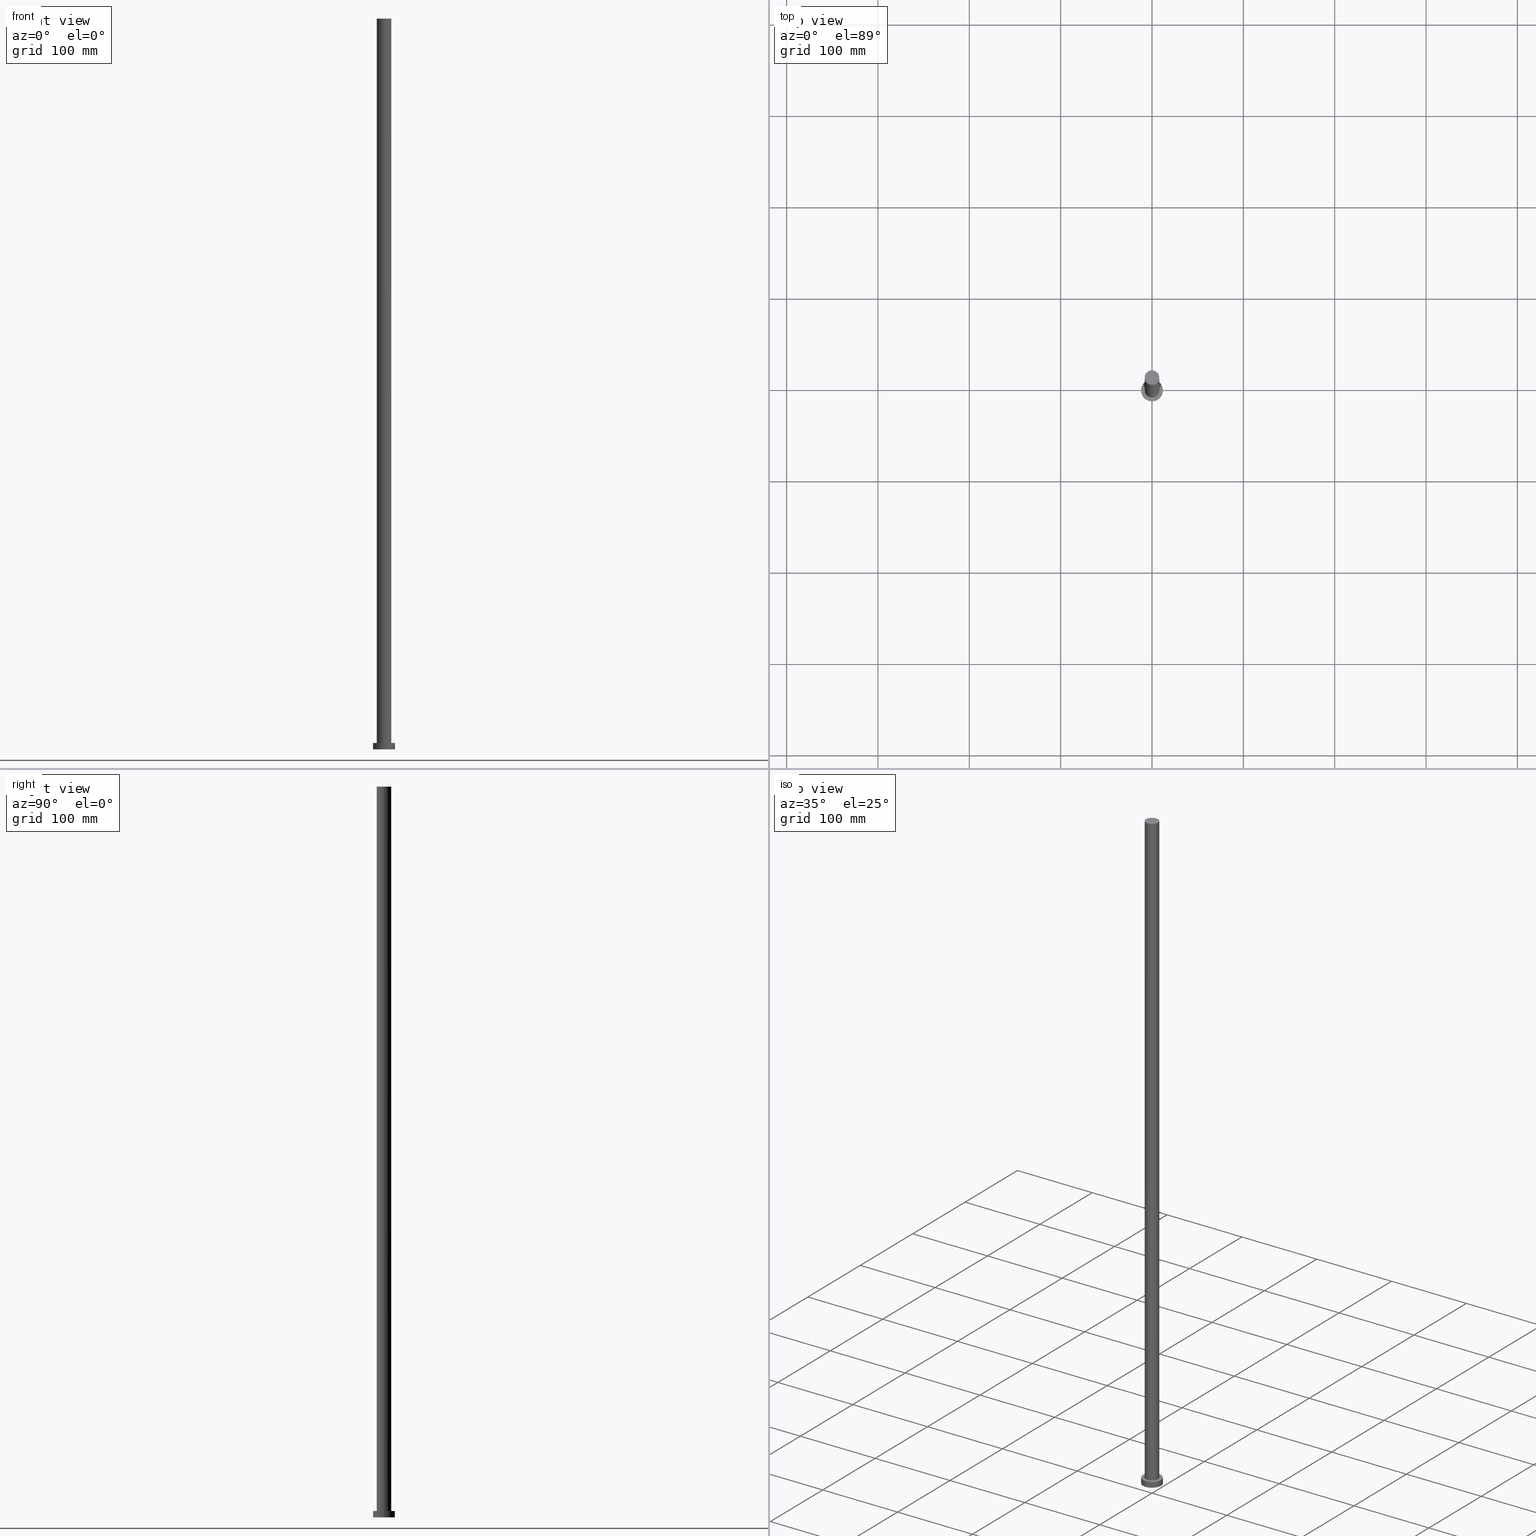
[diagram: canonical four-view strip — front | top / right | iso, engineering-drawing reading convention]
A machine part, canonical four-view strip (front | top / right | iso — engineering-drawing reading convention). The complete STEP part file that produces these views, byte-faithful:
ISO-10303-21;
HEADER;
FILE_DESCRIPTION (( 'STEP AP203' ),
    '1' );
FILE_NAME ('3115.STEP',
    '2023-02-13T09:42:58',
    ( '' ),
    ( '' ),
    'SwSTEP 2.0',
    'SolidWorks 2019',
    '' );
FILE_SCHEMA (( 'CONFIG_CONTROL_DESIGN' ));
ENDSEC;

DATA;
#1 = LOCAL_TIME ( 10, 42, 58.00000000000000000, #35 ) ;
#2 = ORIENTED_EDGE ( 'NONE', *, *, #61, .F. ) ;
#3 = ADVANCED_BREP_SHAPE_REPRESENTATION ( '3115', ( #64, #41 ), #203 ) ;
#4 = DIRECTION ( 'NONE',  ( 1.000000000000000000, 0.000000000000000000, 0.000000000000000000 ) ) ;
#5 = ORIENTED_EDGE ( 'NONE', *, *, #47, .F. ) ;
#6 = CARTESIAN_POINT ( 'NONE',  ( 0.000000000000000000, 0.000000000000000000, 0.000000000000000000 ) ) ;
#7 = DIRECTION ( 'NONE',  ( 1.000000000000000000, 0.000000000000000000, 0.000000000000000000 ) ) ;
#8 = EDGE_CURVE ( 'NONE', #85, #128, #49, .T. ) ;
#9 = CARTESIAN_POINT ( 'NONE',  ( 0.000000000000000000, 0.000000000000000000, 7.000000000000000000 ) ) ;
#10 = DIRECTION ( 'NONE',  ( -0.000000000000000000, -0.000000000000000000, -1.000000000000000000 ) ) ;
#11 = PERSON_AND_ORGANIZATION ( #108, #30 ) ;
#12 = CC_DESIGN_PERSON_AND_ORGANIZATION_ASSIGNMENT ( #211, #253, ( #250 ) ) ;
#13 = CLOSED_SHELL ( 'NONE', ( #107, #81, #139, #32, #19, #28, #95 ) ) ;
#14 = DIRECTION ( 'NONE',  ( 0.000000000000000000, 0.000000000000000000, 1.000000000000000000 ) ) ;
#15 = CC_DESIGN_APPROVAL ( #101, ( #38 ) ) ;
#16 = DATE_AND_TIME ( #229, #1 ) ;
#17 = PERSON_AND_ORGANIZATION ( #108, #30 ) ;
#18 = APPROVAL_DATE_TIME ( #16, #238 ) ;
#19 = ADVANCED_FACE ( 'NONE', ( #113 ), #109, .F. ) ;
#20 = VECTOR ( 'NONE', #23, 1000.000000000000000 ) ;
#21 = DIRECTION ( 'NONE',  ( -1.000000000000000000, 0.000000000000000000, 0.000000000000000000 ) ) ;
#22 = VECTOR ( 'NONE', #177, 1000.000000000000000 ) ;
#23 = DIRECTION ( 'NONE',  ( -0.000000000000000000, -0.000000000000000000, -1.000000000000000000 ) ) ;
#24 = VERTEX_POINT ( 'NONE', #184 ) ;
#25 = AXIS2_PLACEMENT_3D ( 'NONE', #214, #57, #21 ) ;
#26 = ORIENTED_EDGE ( 'NONE', *, *, #191, .T. ) ;
#27 = DIRECTION ( 'NONE',  ( 0.000000000000000000, 0.000000000000000000, 1.000000000000000000 ) ) ;
#28 = ADVANCED_FACE ( 'NONE', ( #226 ), #94, .T. ) ;
#29 = ORIENTED_EDGE ( 'NONE', *, *, #179, .F. ) ;
#30 = ORGANIZATION ( 'NEUR�EN�', 'NEUR�EN�', '' ) ;
#31 = APPLICATION_PROTOCOL_DEFINITION ( 'international standard', 'config_control_design', 1994, #247 ) ;
#32 = ADVANCED_FACE ( 'NONE', ( #248, #74 ), #154, .T. ) ;
#33 = VERTEX_POINT ( 'NONE', #134 ) ;
#34 = AXIS2_PLACEMENT_3D ( 'NONE', #149, #240, #87 ) ;
#35 = COORDINATED_UNIVERSAL_TIME_OFFSET ( 1, 0, .AHEAD. ) ;
#36 = EDGE_CURVE ( 'NONE', #93, #66, #50, .T. ) ;
#37 = APPROVAL_PERSON_ORGANIZATION ( #11, #238, #116 ) ;
#38 = PRODUCT_DEFINITION ( 'NEZN�M�', '', #126, #218 ) ;
#39 = LINE ( 'NONE', #197, #22 ) ;
#40 = DIRECTION ( 'NONE',  ( 0.000000000000000000, 0.000000000000000000, 1.000000000000000000 ) ) ;
#41 = AXIS2_PLACEMENT_3D ( 'NONE', #121, #200, #65 ) ;
#42 = ORIENTED_EDGE ( 'NONE', *, *, #59, .T. ) ;
#43 = ORIENTED_EDGE ( 'NONE', *, *, #8, .T. ) ;
#44 = AXIS2_PLACEMENT_3D ( 'NONE', #244, #72, #242 ) ;
#45 = DIRECTION ( 'NONE',  ( -0.000000000000000000, -0.000000000000000000, -1.000000000000000000 ) ) ;
#46 = EDGE_LOOP ( 'NONE', ( #165, #29 ) ) ;
#47 = EDGE_CURVE ( 'NONE', #237, #85, #194, .T. ) ;
#48 = DIRECTION ( 'NONE',  ( 1.000000000000000000, 0.000000000000000000, 0.000000000000000000 ) ) ;
#49 = LINE ( 'NONE', #151, #233 ) ;
#50 = CIRCLE ( 'NONE', #60, 12.00000000000000178 ) ;
#51 = CARTESIAN_POINT ( 'NONE',  ( 0.000000000000000000, 0.000000000000000000, 7.000000000000000000 ) ) ;
#52 = COORDINATED_UNIVERSAL_TIME_OFFSET ( 1, 0, .AHEAD. ) ;
#53 = DIRECTION ( 'NONE',  ( 1.000000000000000000, 0.000000000000000000, -0.000000000000000000 ) ) ;
#54 = MECHANICAL_CONTEXT ( 'NONE', #193, 'mechanical' ) ;
#55 = DIRECTION ( 'NONE',  ( -0.000000000000000000, -0.000000000000000000, -1.000000000000000000 ) ) ;
#56 = COORDINATED_UNIVERSAL_TIME_OFFSET ( 1, 0, .AHEAD. ) ;
#57 = DIRECTION ( 'NONE',  ( -0.000000000000000000, -0.000000000000000000, -1.000000000000000000 ) ) ;
#58 = LOCAL_TIME ( 10, 42, 58.00000000000000000, #234 ) ;
#59 = EDGE_CURVE ( 'NONE', #85, #237, #152, .T. ) ;
#60 = AXIS2_PLACEMENT_3D ( 'NONE', #210, #14, #169 ) ;
#61 = EDGE_CURVE ( 'NONE', #24, #163, #213, .T. ) ;
#62 = CIRCLE ( 'NONE', #138, 8.000000000000000000 ) ;
#63 = FACE_OUTER_BOUND ( 'NONE', #219, .T. ) ;
#64 = MANIFOLD_SOLID_BREP ( 'P�idat vysunut�m3', #13 ) ;
#65 = DIRECTION ( 'NONE',  ( 1.000000000000000000, 0.000000000000000000, 0.000000000000000000 ) ) ;
#66 = VERTEX_POINT ( 'NONE', #103 ) ;
#67 = CYLINDRICAL_SURFACE ( 'NONE', #86, 12.00000000000000178 ) ;
#68 = ORIENTED_EDGE ( 'NONE', *, *, #175, .F. ) ;
#69 = CARTESIAN_POINT ( 'NONE',  ( -8.000000000000000000, 0.000000000000000000, 800.0000000000000000 ) ) ;
#70 = APPROVAL_PERSON_ORGANIZATION ( #192, #199, #96 ) ;
#71 = FACE_OUTER_BOUND ( 'NONE', #145, .T. ) ;
#72 = DIRECTION ( 'NONE',  ( 0.000000000000000000, 0.000000000000000000, 1.000000000000000000 ) ) ;
#73 = PERSON_AND_ORGANIZATION ( #108, #30 ) ;
#74 = FACE_OUTER_BOUND ( 'NONE', #122, .T. ) ;
#75 = AXIS2_PLACEMENT_3D ( 'NONE', #136, #27, #7 ) ;
#76 = DATE_TIME_ROLE ( 'creation_date' ) ;
#77 = CIRCLE ( 'NONE', #171, 12.00000000000000178 ) ;
#78 = APPROVAL_DATE_TIME ( #100, #101 ) ;
#79 = DIRECTION ( 'NONE',  ( 1.000000000000000000, 0.000000000000000000, 0.000000000000000000 ) ) ;
#80 = AXIS2_PLACEMENT_3D ( 'NONE', #51, #228, #53 ) ;
#81 = ADVANCED_FACE ( 'NONE', ( #158 ), #232, .T. ) ;
#82 = DATE_AND_TIME ( #84, #58 ) ;
#83 = AXIS2_PLACEMENT_3D ( 'NONE', #92, #40, #141 ) ;
#84 = CALENDAR_DATE ( 2023, 13, 2 ) ;
#85 = VERTEX_POINT ( 'NONE', #216 ) ;
#86 = AXIS2_PLACEMENT_3D ( 'NONE', #9, #45, #89 ) ;
#87 = DIRECTION ( 'NONE',  ( -1.000000000000000000, 0.000000000000000000, 0.000000000000000000 ) ) ;
#88 = ORIENTED_EDGE ( 'NONE', *, *, #47, .T. ) ;
#89 = DIRECTION ( 'NONE',  ( -1.000000000000000000, 0.000000000000000000, 0.000000000000000000 ) ) ;
#90 = EDGE_CURVE ( 'NONE', #163, #66, #39, .T. ) ;
#91 = DIRECTION ( 'NONE',  ( 0.000000000000000000, 0.000000000000000000, 1.000000000000000000 ) ) ;
#92 = CARTESIAN_POINT ( 'NONE',  ( 0.000000000000000000, 0.000000000000000000, 7.000000000000000000 ) ) ;
#93 = VERTEX_POINT ( 'NONE', #161 ) ;
#94 = CYLINDRICAL_SURFACE ( 'NONE', #144, 8.000000000000000000 ) ;
#95 = ADVANCED_FACE ( 'NONE', ( #63 ), #142, .T. ) ;
#96 = APPROVAL_ROLE ( '' ) ;
#97 = ORIENTED_EDGE ( 'NONE', *, *, #148, .T. ) ;
#98 = CARTESIAN_POINT ( 'NONE',  ( 0.000000000000000000, 0.000000000000000000, 800.0000000000000000 ) ) ;
#99 = LOCAL_TIME ( 10, 42, 58.00000000000000000, #117 ) ;
#100 = DATE_AND_TIME ( #135, #235 ) ;
#101 = APPROVAL ( #150, 'NEUR�EN�' ) ;
#102 = SECURITY_CLASSIFICATION_LEVEL ( 'unclassified' ) ;
#103 = CARTESIAN_POINT ( 'NONE',  ( -12.00000000000000178, 0.000000000000000000, 0.000000000000000000 ) ) ;
#104 = CC_DESIGN_APPROVAL ( #199, ( #146 ) ) ;
#105 = CARTESIAN_POINT ( 'NONE',  ( -12.00000000000000178, 0.000000000000000000, 7.000000000000000000 ) ) ;
#106 = ORIENTED_EDGE ( 'NONE', *, *, #8, .F. ) ;
#107 = ADVANCED_FACE ( 'NONE', ( #71 ), #185, .T. ) ;
#108 = PERSON ( 'NEUR�EN�', 'NEUR�EN�', 'NEUR�EN�', ('NEUR�EN�'), ('NEUR�EN�'), ('NEUR�EN�') ) ;
#109 = PLANE ( 'NONE',  #44 ) ;
#110 = APPLICATION_PROTOCOL_DEFINITION ( 'international standard', 'config_control_design', 1994, #193 ) ;
#111 = VECTOR ( 'NONE', #207, 1000.000000000000000 ) ;
#112 = APPROVAL_STATUS ( 'not_yet_approved' ) ;
#113 = FACE_OUTER_BOUND ( 'NONE', #239, .T. ) ;
#114 = PERSON_AND_ORGANIZATION ( #108, #30 ) ;
#115 = CC_DESIGN_DATE_AND_TIME_ASSIGNMENT ( #249, #76, ( #38 ) ) ;
#116 = APPROVAL_ROLE ( '' ) ;
#117 = COORDINATED_UNIVERSAL_TIME_OFFSET ( 1, 0, .AHEAD. ) ;
#118 = CC_DESIGN_PERSON_AND_ORGANIZATION_ASSIGNMENT ( #157, #190, ( #126 ) ) ;
#119 = UNCERTAINTY_MEASURE_WITH_UNIT (LENGTH_MEASURE( 1.000000000000000082E-05 ), #246, 'distance_accuracy_value', 'NONE');
#120 = ORIENTED_EDGE ( 'NONE', *, *, #175, .T. ) ;
#121 = CARTESIAN_POINT ( 'NONE',  ( 0.000000000000000000, 0.000000000000000000, 0.000000000000000000 ) ) ;
#122 = EDGE_LOOP ( 'NONE', ( #202, #189 ) ) ;
#123 = EDGE_CURVE ( 'NONE', #33, #128, #176, .T. ) ;
#124 = CARTESIAN_POINT ( 'NONE',  ( 12.00000000000000178, 1.469576158976824144E-15, 7.000000000000000000 ) ) ;
#125 = ORIENTED_EDGE ( 'NONE', *, *, #36, .F. ) ;
#126 = PRODUCT_DEFINITION_FORMATION_WITH_SPECIFIED_SOURCE ( 'LIBOVOLN�', '', #250, .NOT_KNOWN. ) ;
#127 = DIRECTION ( 'NONE',  ( 1.000000000000000000, 0.000000000000000000, 0.000000000000000000 ) ) ;
#128 = VERTEX_POINT ( 'NONE', #130 ) ;
#129 = ORIENTED_EDGE ( 'NONE', *, *, #148, .F. ) ;
#130 = CARTESIAN_POINT ( 'NONE',  ( 8.000000000000000000, 9.797174393178825657E-16, 7.000000000000000000 ) ) ;
#131 = CC_DESIGN_PERSON_AND_ORGANIZATION_ASSIGNMENT ( #17, #188, ( #126 ) ) ;
#132 = ORIENTED_EDGE ( 'NONE', *, *, #191, .F. ) ;
#133 = CALENDAR_DATE ( 2023, 13, 2 ) ;
#134 = CARTESIAN_POINT ( 'NONE',  ( -8.000000000000000000, 0.000000000000000000, 7.000000000000000000 ) ) ;
#135 = CALENDAR_DATE ( 2023, 13, 2 ) ;
#136 = CARTESIAN_POINT ( 'NONE',  ( 0.000000000000000000, 0.000000000000000000, 800.0000000000000000 ) ) ;
#137 = DATE_AND_TIME ( #209, #208 ) ;
#138 = AXIS2_PLACEMENT_3D ( 'NONE', #164, #241, #4 ) ;
#139 = ADVANCED_FACE ( 'NONE', ( #187 ), #67, .T. ) ;
#140 = AXIS2_PLACEMENT_3D ( 'NONE', #217, #183, #225 ) ;
#141 = DIRECTION ( 'NONE',  ( 1.000000000000000000, 0.000000000000000000, 0.000000000000000000 ) ) ;
#142 = PLANE ( 'NONE',  #140 ) ;
#143 = LINE ( 'NONE', #69, #111 ) ;
#144 = AXIS2_PLACEMENT_3D ( 'NONE', #230, #55, #251 ) ;
#145 = EDGE_LOOP ( 'NONE', ( #162, #43, #201, #132 ) ) ;
#146 = SECURITY_CLASSIFICATION ( '', '', #102 ) ;
#147 = CARTESIAN_POINT ( 'NONE',  ( -8.000000000000000000, 0.000000000000000000, 800.0000000000000000 ) ) ;
#148 = EDGE_CURVE ( 'NONE', #24, #93, #166, .T. ) ;
#149 = CARTESIAN_POINT ( 'NONE',  ( 0.000000000000000000, 0.000000000000000000, 800.0000000000000000 ) ) ;
#150 = APPROVAL_STATUS ( 'not_yet_approved' ) ;
#151 = CARTESIAN_POINT ( 'NONE',  ( 8.000000000000000000, 9.797174393178825657E-16, 800.0000000000000000 ) ) ;
#152 = CIRCLE ( 'NONE', #75, 8.000000000000000000 ) ;
#153 = EDGE_CURVE ( 'NONE', #163, #24, #195, .T. ) ;
#154 = PLANE ( 'NONE',  #80 ) ;
#155 = PERSON_AND_ORGANIZATION_ROLE ( 'creator' ) ;
#156 = ORIENTED_EDGE ( 'NONE', *, *, #153, .F. ) ;
#157 = PERSON_AND_ORGANIZATION ( #108, #30 ) ;
#158 = FACE_OUTER_BOUND ( 'NONE', #198, .T. ) ;
#159 = APPROVAL_DATE_TIME ( #82, #199 ) ;
#160 = AXIS2_PLACEMENT_3D ( 'NONE', #221, #205, #127 ) ;
#161 = CARTESIAN_POINT ( 'NONE',  ( 12.00000000000000178, 1.469576158976824144E-15, 0.000000000000000000 ) ) ;
#162 = ORIENTED_EDGE ( 'NONE', *, *, #59, .F. ) ;
#163 = VERTEX_POINT ( 'NONE', #105 ) ;
#164 = CARTESIAN_POINT ( 'NONE',  ( 0.000000000000000000, 0.000000000000000000, 7.000000000000000000 ) ) ;
#165 = ORIENTED_EDGE ( 'NONE', *, *, #123, .F. ) ;
#166 = LINE ( 'NONE', #124, #20 ) ;
#167 = ORIENTED_EDGE ( 'NONE', *, *, #90, .T. ) ;
#168 = DIRECTION ( 'NONE',  ( 1.000000000000000000, 0.000000000000000000, 0.000000000000000000 ) ) ;
#169 = DIRECTION ( 'NONE',  ( 1.000000000000000000, 0.000000000000000000, 0.000000000000000000 ) ) ;
#170 = EDGE_LOOP ( 'NONE', ( #106, #5, #26, #178 ) ) ;
#171 = AXIS2_PLACEMENT_3D ( 'NONE', #6, #91, #168 ) ;
#172 = EDGE_LOOP ( 'NONE', ( #129, #156, #167, #120 ) ) ;
#173 = PERSON_AND_ORGANIZATION ( #108, #30 ) ;
#174 = CC_DESIGN_SECURITY_CLASSIFICATION ( #146, ( #126 ) ) ;
#175 = EDGE_CURVE ( 'NONE', #66, #93, #77, .T. ) ;
#176 = CIRCLE ( 'NONE', #220, 8.000000000000000000 ) ;
#177 = DIRECTION ( 'NONE',  ( -0.000000000000000000, -0.000000000000000000, -1.000000000000000000 ) ) ;
#178 = ORIENTED_EDGE ( 'NONE', *, *, #123, .T. ) ;
#179 = EDGE_CURVE ( 'NONE', #128, #33, #62, .T. ) ;
#180 =( NAMED_UNIT ( * ) PLANE_ANGLE_UNIT ( ) SI_UNIT ( $, .RADIAN. ) );
#181 = AXIS2_PLACEMENT_3D ( 'NONE', #98, #252, #79 ) ;
#182 = ORIENTED_EDGE ( 'NONE', *, *, #90, .F. ) ;
#183 = DIRECTION ( 'NONE',  ( 0.000000000000000000, 0.000000000000000000, 1.000000000000000000 ) ) ;
#184 = CARTESIAN_POINT ( 'NONE',  ( 12.00000000000000178, 1.469576158976824144E-15, 7.000000000000000000 ) ) ;
#185 = CYLINDRICAL_SURFACE ( 'NONE', #34, 8.000000000000000000 ) ;
#186 = PRODUCT_DEFINITION_SHAPE ( 'NONE', 'NONE',  #38 ) ;
#187 = FACE_OUTER_BOUND ( 'NONE', #172, .T. ) ;
#188 = PERSON_AND_ORGANIZATION_ROLE ( 'design_supplier' ) ;
#189 = ORIENTED_EDGE ( 'NONE', *, *, #61, .T. ) ;
#190 = PERSON_AND_ORGANIZATION_ROLE ( 'creator' ) ;
#191 = EDGE_CURVE ( 'NONE', #237, #33, #143, .T. ) ;
#192 = PERSON_AND_ORGANIZATION ( #108, #30 ) ;
#193 = APPLICATION_CONTEXT ( 'configuration controlled 3d designs of mechanical parts and assemblies' ) ;
#194 = CIRCLE ( 'NONE', #181, 8.000000000000000000 ) ;
#195 = CIRCLE ( 'NONE', #160, 12.00000000000000178 ) ;
#196 = SHAPE_DEFINITION_REPRESENTATION ( #186, #3 ) ;
#197 = CARTESIAN_POINT ( 'NONE',  ( -12.00000000000000178, 0.000000000000000000, 7.000000000000000000 ) ) ;
#198 = EDGE_LOOP ( 'NONE', ( #2, #97, #223, #182 ) ) ;
#199 = APPROVAL ( #112, 'NEUR�EN�' ) ;
#200 = DIRECTION ( 'NONE',  ( 0.000000000000000000, 0.000000000000000000, 1.000000000000000000 ) ) ;
#201 = ORIENTED_EDGE ( 'NONE', *, *, #179, .T. ) ;
#202 = ORIENTED_EDGE ( 'NONE', *, *, #153, .T. ) ;
#203 =( GEOMETRIC_REPRESENTATION_CONTEXT ( 3 ) GLOBAL_UNCERTAINTY_ASSIGNED_CONTEXT ( ( #119 ) ) GLOBAL_UNIT_ASSIGNED_CONTEXT ( ( #246, #180, #206 ) ) REPRESENTATION_CONTEXT ( 'NONE', 'WORKASPACE' ) );
#204 = CC_DESIGN_PERSON_AND_ORGANIZATION_ASSIGNMENT ( #114, #155, ( #38 ) ) ;
#205 = DIRECTION ( 'NONE',  ( 0.000000000000000000, 0.000000000000000000, 1.000000000000000000 ) ) ;
#206 =( NAMED_UNIT ( * ) SI_UNIT ( $, .STERADIAN. ) SOLID_ANGLE_UNIT ( ) );
#207 = DIRECTION ( 'NONE',  ( -0.000000000000000000, -0.000000000000000000, -1.000000000000000000 ) ) ;
#208 = LOCAL_TIME ( 10, 42, 58.00000000000000000, #56 ) ;
#209 = CALENDAR_DATE ( 2023, 13, 2 ) ;
#210 = CARTESIAN_POINT ( 'NONE',  ( 0.000000000000000000, 0.000000000000000000, 0.000000000000000000 ) ) ;
#211 = PERSON_AND_ORGANIZATION ( #108, #30 ) ;
#212 = APPROVAL_STATUS ( 'not_yet_approved' ) ;
#213 = CIRCLE ( 'NONE', #83, 12.00000000000000178 ) ;
#214 = CARTESIAN_POINT ( 'NONE',  ( 0.000000000000000000, 0.000000000000000000, 7.000000000000000000 ) ) ;
#215 = CC_DESIGN_APPROVAL ( #238, ( #126 ) ) ;
#216 = CARTESIAN_POINT ( 'NONE',  ( 8.000000000000000000, 9.797174393178825657E-16, 800.0000000000000000 ) ) ;
#217 = CARTESIAN_POINT ( 'NONE',  ( 0.000000000000000000, 0.000000000000000000, 800.0000000000000000 ) ) ;
#218 = DESIGN_CONTEXT ( 'detailed design', #247, 'design' ) ;
#219 = EDGE_LOOP ( 'NONE', ( #88, #42 ) ) ;
#220 = AXIS2_PLACEMENT_3D ( 'NONE', #222, #243, #48 ) ;
#221 = CARTESIAN_POINT ( 'NONE',  ( 0.000000000000000000, 0.000000000000000000, 7.000000000000000000 ) ) ;
#222 = CARTESIAN_POINT ( 'NONE',  ( 0.000000000000000000, 0.000000000000000000, 7.000000000000000000 ) ) ;
#223 = ORIENTED_EDGE ( 'NONE', *, *, #36, .T. ) ;
#224 = APPROVAL_PERSON_ORGANIZATION ( #73, #101, #227 ) ;
#225 = DIRECTION ( 'NONE',  ( 1.000000000000000000, 0.000000000000000000, -0.000000000000000000 ) ) ;
#226 = FACE_OUTER_BOUND ( 'NONE', #170, .T. ) ;
#227 = APPROVAL_ROLE ( '' ) ;
#228 = DIRECTION ( 'NONE',  ( 0.000000000000000000, 0.000000000000000000, 1.000000000000000000 ) ) ;
#229 = CALENDAR_DATE ( 2023, 13, 2 ) ;
#230 = CARTESIAN_POINT ( 'NONE',  ( 0.000000000000000000, 0.000000000000000000, 800.0000000000000000 ) ) ;
#231 = PERSON_AND_ORGANIZATION_ROLE ( 'classification_officer' ) ;
#232 = CYLINDRICAL_SURFACE ( 'NONE', #25, 12.00000000000000178 ) ;
#233 = VECTOR ( 'NONE', #10, 1000.000000000000000 ) ;
#234 = COORDINATED_UNIVERSAL_TIME_OFFSET ( 1, 0, .AHEAD. ) ;
#235 = LOCAL_TIME ( 10, 42, 58.00000000000000000, #52 ) ;
#236 = CC_DESIGN_PERSON_AND_ORGANIZATION_ASSIGNMENT ( #173, #231, ( #146 ) ) ;
#237 = VERTEX_POINT ( 'NONE', #147 ) ;
#238 = APPROVAL ( #212, 'NEUR�EN�' ) ;
#239 = EDGE_LOOP ( 'NONE', ( #68, #125 ) ) ;
#240 = DIRECTION ( 'NONE',  ( -0.000000000000000000, -0.000000000000000000, -1.000000000000000000 ) ) ;
#241 = DIRECTION ( 'NONE',  ( 0.000000000000000000, 0.000000000000000000, 1.000000000000000000 ) ) ;
#242 = DIRECTION ( 'NONE',  ( 1.000000000000000000, 0.000000000000000000, -0.000000000000000000 ) ) ;
#243 = DIRECTION ( 'NONE',  ( 0.000000000000000000, 0.000000000000000000, 1.000000000000000000 ) ) ;
#244 = CARTESIAN_POINT ( 'NONE',  ( 0.000000000000000000, 0.000000000000000000, 0.000000000000000000 ) ) ;
#245 = CC_DESIGN_DATE_AND_TIME_ASSIGNMENT ( #137, #254, ( #146 ) ) ;
#246 =( LENGTH_UNIT ( ) NAMED_UNIT ( * ) SI_UNIT ( .MILLI., .METRE. ) );
#247 = APPLICATION_CONTEXT ( 'configuration controlled 3d designs of mechanical parts and assemblies' ) ;
#248 = FACE_BOUND ( 'NONE', #46, .T. ) ;
#249 = DATE_AND_TIME ( #133, #99 ) ;
#250 = PRODUCT ( '3115', '3115', '', ( #54 ) ) ;
#251 = DIRECTION ( 'NONE',  ( -1.000000000000000000, 0.000000000000000000, 0.000000000000000000 ) ) ;
#252 = DIRECTION ( 'NONE',  ( 0.000000000000000000, 0.000000000000000000, 1.000000000000000000 ) ) ;
#253 = PERSON_AND_ORGANIZATION_ROLE ( 'design_owner' ) ;
#254 = DATE_TIME_ROLE ( 'classification_date' ) ;
#255 = PRODUCT_RELATED_PRODUCT_CATEGORY ( 'detail', '', ( #250 ) ) ;
ENDSEC;
END-ISO-10303-21;
